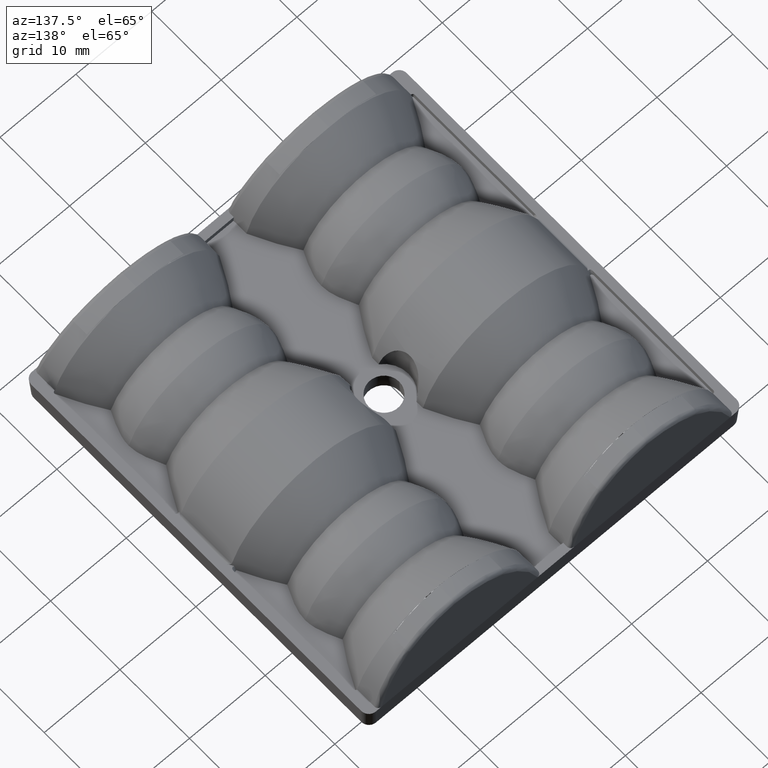
[diagram: clean part render]
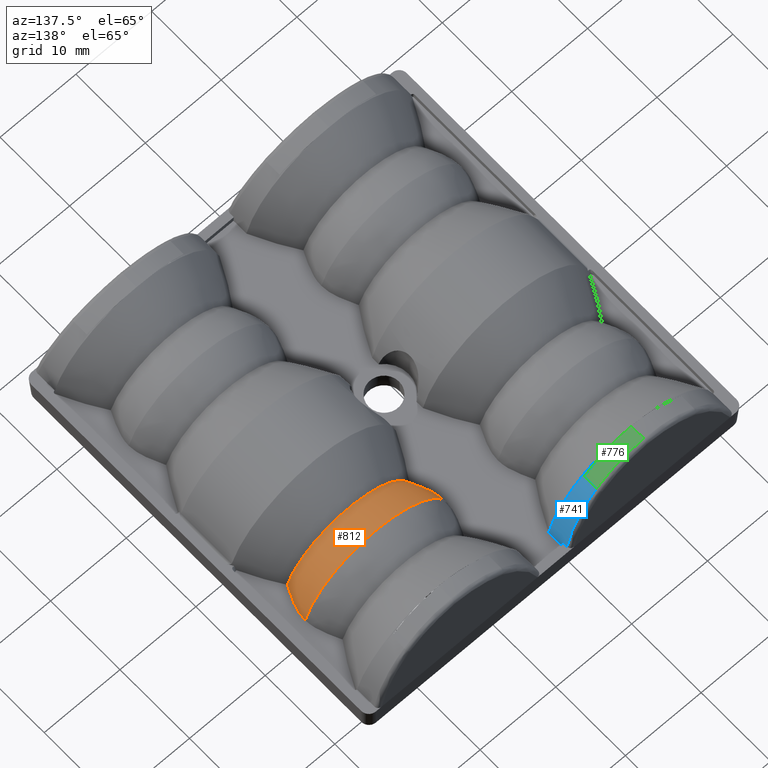
[diagram: same view with three faces highlighted in distinct colors, each labeled with its STEP entity id]
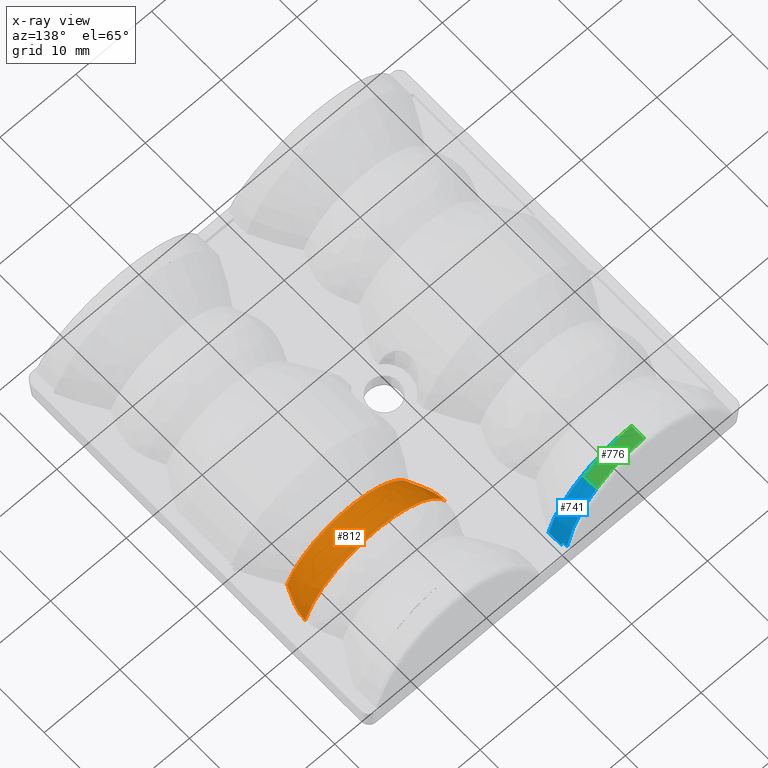
[diagram: x-ray of the same camera — body ghosted, the three highlighted faces saturated]
A machine part, auxiliary view with three faces highlighted in distinct colors.
The next image is the same camera in x-ray (body ghosted, the three faces saturated) — at least one of them is partly hidden behind the body in this view.
Their STEP definitions:

[orange] entity #812 — the highlighted face is a freeform B-spline surface patch.
#57=B_SPLINE_SURFACE_WITH_KNOTS('',3,3,((#10687,#10688,#10689,#10690,#10691,
#10692,#10693,#10694,#10695,#10696,#10697,#10698,#10699,#10700,#10701,#10702,
#10703,#10704,#10705),(#10706,#10707,#10708,#10709,#10710,#10711,#10712,
#10713,#10714,#10715,#10716,#10717,#10718,#10719,#10720,#10721,#10722,#10723,
#10724),(#10725,#10726,#10727,#10728,#10729,#10730,#10731,#10732,#10733,
#10734,#10735,#10736,#10737,#10738,#10739,#10740,#10741,#10742,#10743),
(#10744,#10745,#10746,#10747,#10748,#10749,#10750,#10751,#10752,#10753,
#10754,#10755,#10756,#10757,#10758,#10759,#10760,#10761,#10762),(#10763,
#10764,#10765,#10766,#10767,#10768,#10769,#10770,#10771,#10772,#10773,#10774,
#10775,#10776,#10777,#10778,#10779,#10780,#10781),(#10782,#10783,#10784,
#10785,#10786,#10787,#10788,#10789,#10790,#10791,#10792,#10793,#10794,#10795,
#10796,#10797,#10798,#10799,#10800),(#10801,#10802,#10803,#10804,#10805,
#10806,#10807,#10808,#10809,#10810,#10811,#10812,#10813,#10814,#10815,#10816,
#10817,#10818,#10819)),.UNSPECIFIED.,.F.,.F.,.F.,(4,3,4),(4,3,3,3,3,3,4),
(0.,0.5,1.),(0.,0.25,0.375,0.5,0.625,0.75,1.),.UNSPECIFIED.);
#84=(
BOUNDED_CURVE()
B_SPLINE_CURVE(3,(#10653,#10654,#10655,#10656),.UNSPECIFIED.,.F.,.F.)
B_SPLINE_CURVE_WITH_KNOTS((4,4),(0.,1.),.UNSPECIFIED.)
CURVE()
GEOMETRIC_REPRESENTATION_ITEM()
RATIONAL_B_SPLINE_CURVE((0.931369737568756,0.494506800355459,0.494506800355459,
0.931369737568756))
REPRESENTATION_ITEM('')
);
#495=B_SPLINE_CURVE_WITH_KNOTS('',3,(#7775,#7776,#7777,#7778),
 .UNSPECIFIED.,.F.,.F.,(4,4),(0.,1.),.UNSPECIFIED.);
#572=B_SPLINE_CURVE_WITH_KNOTS('',3,(#8804,#8805,#8806,#8807),
 .UNSPECIFIED.,.F.,.F.,(4,4),(0.,1.),.UNSPECIFIED.);
#622=B_SPLINE_CURVE_WITH_KNOTS('',3,(#10677,#10678,#10679,#10680,#10681,
#10682,#10683,#10684,#10685,#10686),.UNSPECIFIED.,.F.,.F.,(4,2,2,2,4),(0.,
0.25,0.5,0.75,1.),.UNSPECIFIED.);
#812=ADVANCED_FACE('',(#1154),#57,.T.);
#1154=FACE_OUTER_BOUND('',#1457,.T.);
#1457=EDGE_LOOP('',(#2500,#2501,#2502,#2503));
#2500=ORIENTED_EDGE('',*,*,#4152,.T.);
#2501=ORIENTED_EDGE('',*,*,#3890,.T.);
#2502=ORIENTED_EDGE('',*,*,#4151,.F.);
#2503=ORIENTED_EDGE('',*,*,#4047,.T.);
#3332=VERTEX_POINT('',#7773);
#3334=VERTEX_POINT('',#7779);
#3439=VERTEX_POINT('',#8803);
#3440=VERTEX_POINT('',#8808);
#3890=EDGE_CURVE('',#3334,#3332,#495,.T.);
#4047=EDGE_CURVE('',#3440,#3439,#572,.T.);
#4151=EDGE_CURVE('',#3440,#3332,#84,.T.);
#4152=EDGE_CURVE('',#3439,#3334,#622,.T.);
#7773=CARTESIAN_POINT('',(17.3450225792154,-3.98589141570628,1.11099999998252));
#7775=CARTESIAN_POINT('',(16.0681872637782,-2.82331047101202E-15,1.11099999998252));
#7776=CARTESIAN_POINT('',(16.0681872637782,-1.41035374141852,1.11099999998252));
#7777=CARTESIAN_POINT('',(16.7617187634229,-2.70396295532967,1.11099999998252));
#7778=CARTESIAN_POINT('',(17.3450225792154,-3.98589141570628,1.11099999998252));
#7779=CARTESIAN_POINT('',(16.0681872637782,-2.82331047101202E-15,1.11099999998252));
#8803=CARTESIAN_POINT('',(34.7318127362219,-2.823310471012E-15,1.11099999998247));
#8804=CARTESIAN_POINT('',(33.4549774207847,-3.98589141570635,1.11099999998247));
#8805=CARTESIAN_POINT('',(34.0389480230406,-2.70249755681645,1.11099999998247));
#8806=CARTESIAN_POINT('',(34.7318127362219,-1.41826043303065,1.11099999998247));
#8807=CARTESIAN_POINT('',(34.7318127362219,-2.823310471012E-15,1.11099999998247));
#8808=CARTESIAN_POINT('',(33.4549774207847,-3.98589141570633,1.11099999998248));
#10653=CARTESIAN_POINT('',(33.4549774207847,-3.9858914157063,1.11099999998247));
#10654=CARTESIAN_POINT('',(30.4569996887982,-3.9858914157063,10.770457175649));
#10655=CARTESIAN_POINT('',(20.3430003112018,-3.9858914157063,10.770457175649));
#10656=CARTESIAN_POINT('',(17.3450225792154,-3.9858914157063,1.11099999998253));
#10677=CARTESIAN_POINT('',(34.7318127362219,-2.823310471012E-15,1.11099999998248));
#10678=CARTESIAN_POINT('',(34.3293387721207,-2.99777019140623E-15,2.61332466566135));
#10679=CARTESIAN_POINT('',(33.4633288946982,-3.19963854056438E-15,4.35167320522612));
#10680=CARTESIAN_POINT('',(30.2608894454674,-3.53427381177077E-15,7.23331729363509));
#10681=CARTESIAN_POINT('',(27.8711351918026,-3.65487923503217E-15,8.27188655060057));
#10682=CARTESIAN_POINT('',(22.9288648081975,-3.65487923503218E-15,8.27188655060058));
#10683=CARTESIAN_POINT('',(20.5391105545327,-3.53427381177078E-15,7.2333172936351));
#10684=CARTESIAN_POINT('',(17.3366711053019,-3.1996385405644E-15,4.35167320522615));
#10685=CARTESIAN_POINT('',(16.4706612278794,-2.99777019140624E-15,2.61332466566139));
#10686=CARTESIAN_POINT('',(16.0681872637782,-2.82331047101202E-15,1.11099999998252));
#10687=CARTESIAN_POINT('',(33.5486550254734,-3.98589141570631,0.786335037437432));
#10688=CARTESIAN_POINT('',(33.1983661797028,-3.98589141570631,2.09849289556449));
#10689=CARTESIAN_POINT('',(32.4433456042953,-3.98589141570632,3.61749359068749));
#10690=CARTESIAN_POINT('',(31.0452907040907,-3.98589141570632,4.87704772687205));
#10691=CARTESIAN_POINT('',(30.3462632539884,-3.98589141570633,5.50682479496433));
#10692=CARTESIAN_POINT('',(29.4909572844062,-3.98589141570633,6.05955261405738));
#10693=CARTESIAN_POINT('',(28.5237568220242,-3.98589141570633,6.44520733488293));
#10694=CARTESIAN_POINT('',(27.5565563596422,-3.98589141570634,6.83086205570849));
#10695=CARTESIAN_POINT('',(26.479643327904,-3.98589141570634,7.0450180963201));
#10696=CARTESIAN_POINT('',(25.4000000000001,-3.98589141570634,7.0450180963201));
#10697=CARTESIAN_POINT('',(24.3203566720961,-3.98589141570634,7.0450180963201));
#10698=CARTESIAN_POINT('',(23.2434436403579,-3.98589141570635,6.8308620557085));
#10699=CARTESIAN_POINT('',(22.2762431779759,-3.98589141570635,6.44520733488294));
#10700=CARTESIAN_POINT('',(21.309042715594,-3.98589141570635,6.05955261405739));
#10701=CARTESIAN_POINT('',(20.4537367460117,-3.98589141570635,5.50682479496435));
#10702=CARTESIAN_POINT('',(19.7547092959094,-3.98589141570635,4.87704772687207));
#10703=CARTESIAN_POINT('',(18.3566543957048,-3.98589141570636,3.61749359068752));
#10704=CARTESIAN_POINT('',(17.6016338202974,-3.98589141570636,2.09849289556452));
#10705=CARTESIAN_POINT('',(17.2513449745268,-3.98589141570636,0.786335037437474));
#10706=CARTESIAN_POINT('',(33.809389685602,-3.36489865647761,0.85593980532659));
#10707=CARTESIAN_POINT('',(33.4478925554136,-3.36489865647762,2.21008312388908));
#10708=CARTESIAN_POINT('',(32.6687133878822,-3.36489865647764,3.77768768415793));
#10709=CARTESIAN_POINT('',(31.2259245569728,-3.36489865647766,5.07754410563805));
#10710=CARTESIAN_POINT('',(30.5045301415182,-3.36489865647767,5.72747231637811));
#10711=CARTESIAN_POINT('',(29.6218567216527,-3.36489865647768,6.29788591301412));
#10712=CARTESIAN_POINT('',(28.6237084914431,-3.36489865647769,6.6958805294724));
#10713=CARTESIAN_POINT('',(27.6255602612336,-3.36489865647769,7.09387514593069));
#10714=CARTESIAN_POINT('',(26.5141889597022,-3.3648986564777,7.31488359375414));
#10715=CARTESIAN_POINT('',(25.4,-3.36489865647771,7.31488359375414));
#10716=CARTESIAN_POINT('',(24.2858110402978,-3.36489865647772,7.31488359375414));
#10717=CARTESIAN_POINT('',(23.1744397387665,-3.36489865647772,7.09387514593069));
#10718=CARTESIAN_POINT('',(22.176291508557,-3.36489865647773,6.6958805294724));
#10719=CARTESIAN_POINT('',(21.1781432783474,-3.36489865647774,6.29788591301412));
#10720=CARTESIAN_POINT('',(20.2954698584819,-3.36489865647774,5.72747231637811));
#10721=CARTESIAN_POINT('',(19.5740754430273,-3.36489865647775,5.07754410563805));
#10722=CARTESIAN_POINT('',(18.1312866121179,-3.36489865647777,3.77768768415793));
#10723=CARTESIAN_POINT('',(17.3521074445866,-3.36489865647778,2.21008312388909));
#10724=CARTESIAN_POINT('',(16.9906103143981,-3.36489865647778,0.855939805326623));
#10725=CARTESIAN_POINT('',(34.0883263074686,-2.75320763414186,0.930403702114326));
#10726=CARTESIAN_POINT('',(33.714838439298,-2.75320763414186,2.32946349820071));
#10727=CARTESIAN_POINT('',(32.9098141613668,-2.75320763414186,3.9490649734434));
#10728=CARTESIAN_POINT('',(31.419168511163,-2.75320763414186,5.29203719436615));
#10729=CARTESIAN_POINT('',(30.6738456860611,-2.75320763414186,5.96352330482752));
#10730=CARTESIAN_POINT('',(29.7618942863238,-2.75320763414186,6.55285732823182));
#10731=CARTESIAN_POINT('',(28.730637815699,-2.75320763414186,6.96405329199193));
#10732=CARTESIAN_POINT('',(27.6993813450741,-2.75320763414187,7.37524925575204));
#10733=CARTESIAN_POINT('',(26.5511462320085,-2.75320763414187,7.60358847930888));
#10734=CARTESIAN_POINT('',(25.4,-2.75320763414187,7.60358847930889));
#10735=CARTESIAN_POINT('',(24.2488537679916,-2.75320763414187,7.60358847930889));
#10736=CARTESIAN_POINT('',(23.1006186549259,-2.75320763414187,7.37524925575205));
#10737=CARTESIAN_POINT('',(22.0693621843011,-2.75320763414187,6.96405329199195));
#10738=CARTESIAN_POINT('',(21.0381057136762,-2.75320763414187,6.55285732823184));
#10739=CARTESIAN_POINT('',(20.126154313939,-2.75320763414186,5.96352330482755));
#10740=CARTESIAN_POINT('',(19.3808314888371,-2.75320763414186,5.29203719436618));
#10741=CARTESIAN_POINT('',(17.8901858386332,-2.75320763414186,3.94906497344344));
#10742=CARTESIAN_POINT('',(17.085161560702,-2.75320763414186,2.32946349820076));
#10743=CARTESIAN_POINT('',(16.7116736925314,-2.75320763414186,0.930403702114384));
#10744=CARTESIAN_POINT('',(34.3219224872466,-2.09803015642227,0.99276368089588));
#10745=CARTESIAN_POINT('',(33.9383929452127,-2.09803015642227,2.42943889473722));
#10746=CARTESIAN_POINT('',(33.111724614181,-2.09803015642227,4.092585317993));
#10747=CARTESIAN_POINT('',(31.5810011495664,-2.09803015642227,5.47166497425526));
#10748=CARTESIAN_POINT('',(30.8156394172592,-2.09803015642227,6.1612048023864));
#10749=CARTESIAN_POINT('',(29.879169099196,-2.09803015642227,6.76638378506232));
#10750=CARTESIAN_POINT('',(28.8201860488613,-2.09803015642227,7.18863525052383));
#10751=CARTESIAN_POINT('',(27.7612029985266,-2.09803015642227,7.61088671598533));
#10752=CARTESIAN_POINT('',(26.5820961932147,-2.09803015642227,7.84536511622923));
#10753=CARTESIAN_POINT('',(25.4,-2.09803015642227,7.84536511622924));
#10754=CARTESIAN_POINT('',(24.2179038067854,-2.09803015642227,7.84536511622924));
#10755=CARTESIAN_POINT('',(23.0387970014735,-2.09803015642227,7.61088671598534));
#10756=CARTESIAN_POINT('',(21.9798139511388,-2.09803015642227,7.18863525052384));
#10757=CARTESIAN_POINT('',(20.9208309008041,-2.09803015642227,6.76638378506235));
#10758=CARTESIAN_POINT('',(19.9843605827409,-2.09803015642226,6.16120480238642));
#10759=CARTESIAN_POINT('',(19.2189988504336,-2.09803015642226,5.4716649742553));
#10760=CARTESIAN_POINT('',(17.6882753858191,-2.09803015642226,4.09258531799304));
#10761=CARTESIAN_POINT('',(16.8616070547873,-2.09803015642226,2.42943889473727));
#10762=CARTESIAN_POINT('',(16.4780775127534,-2.09803015642225,0.992763680895939));
#10763=CARTESIAN_POINT('',(34.5555186670246,-1.44285267870268,1.05512365967743));
#10764=CARTESIAN_POINT('',(34.1619474511273,-1.44285267870268,2.52941429127372));
#10765=CARTESIAN_POINT('',(33.3136350669951,-1.44285267870267,4.2361056625426));
#10766=CARTESIAN_POINT('',(31.7428337879699,-1.44285267870267,5.65129275414438));
#10767=CARTESIAN_POINT('',(30.9574331484573,-1.44285267870267,6.35888629994527));
#10768=CARTESIAN_POINT('',(29.9964439120682,-1.44285267870267,6.97991024189282));
#10769=CARTESIAN_POINT('',(28.9097342820236,-1.44285267870267,7.41321720905573));
#10770=CARTESIAN_POINT('',(27.8230246519791,-1.44285267870267,7.84652417621863));
#10771=CARTESIAN_POINT('',(26.6130461544209,-1.44285267870267,8.08714175314958));
#10772=CARTESIAN_POINT('',(25.4,-1.44285267870267,8.08714175314959));
#10773=CARTESIAN_POINT('',(24.1869538455791,-1.44285267870267,8.08714175314959));
#10774=CARTESIAN_POINT('',(22.976975348021,-1.44285267870267,7.84652417621864));
#10775=CARTESIAN_POINT('',(21.8902657179765,-1.44285267870267,7.41321720905574));
#10776=CARTESIAN_POINT('',(20.8035560879319,-1.44285267870267,6.97991024189285));
#10777=CARTESIAN_POINT('',(19.8425668515428,-1.44285267870266,6.3588862999453));
#10778=CARTESIAN_POINT('',(19.0571662120302,-1.44285267870266,5.65129275414442));
#10779=CARTESIAN_POINT('',(17.486364933005,-1.44285267870266,4.23610566254264));
#10780=CARTESIAN_POINT('',(16.6380525488727,-1.44285267870265,2.52941429127378));
#10781=CARTESIAN_POINT('',(16.2444813329754,-1.44285267870265,1.05512365967749));
#10782=CARTESIAN_POINT('',(34.7340126665612,-0.747900957517127,1.10277376266419));
#10783=CARTESIAN_POINT('',(34.3327684718865,-0.747900957517125,2.6058068435835));
#10784=CARTESIAN_POINT('',(33.4679175741204,-0.747900957517124,4.34577149842171));
#10785=CARTESIAN_POINT('',(31.8664922951922,-0.747900957517123,5.78854876959271));
#10786=CARTESIAN_POINT('',(31.0657796557281,-0.747900957517122,6.50993740517821));
#10787=CARTESIAN_POINT('',(30.0860551823139,-0.747900957517122,7.14306869475266));
#10788=CARTESIAN_POINT('',(28.9781592978084,-0.747900957517122,7.58482332025244));
#10789=CARTESIAN_POINT('',(27.8702634133029,-0.747900957517122,8.02657794575222));
#10790=CARTESIAN_POINT('',(26.6366954382682,-0.747900957517121,8.27188655060057));
#10791=CARTESIAN_POINT('',(25.4,-0.747900957517121,8.27188655060057));
#10792=CARTESIAN_POINT('',(24.1633045617319,-0.74790095751712,8.27188655060058));
#10793=CARTESIAN_POINT('',(22.9297365866972,-0.747900957517119,8.02657794575223));
#10794=CARTESIAN_POINT('',(21.8218407021917,-0.747900957517117,7.58482332025246));
#10795=CARTESIAN_POINT('',(20.7139448176862,-0.747900957517115,7.14306869475268));
#10796=CARTESIAN_POINT('',(19.734220344272,-0.747900957517113,6.50993740517824));
#10797=CARTESIAN_POINT('',(18.9335077048079,-0.747900957517111,5.78854876959274));
#10798=CARTESIAN_POINT('',(17.3320824258797,-0.747900957517107,4.34577149842176));
#10799=CARTESIAN_POINT('',(16.4672315281136,-0.747900957517103,2.60580684358355));
#10800=CARTESIAN_POINT('',(16.0659873334389,-0.7479009575171,1.10277376266425));
#10801=CARTESIAN_POINT('',(34.7340126665612,-2.82235518678135E-15,1.10277376266419));
#10802=CARTESIAN_POINT('',(34.3327684718865,-2.99689717296511E-15,2.6058068435835));
#10803=CARTESIAN_POINT('',(33.4679175741204,-3.19895319594982E-15,4.34577149842171));
#10804=CARTESIAN_POINT('',(31.8664922951922,-3.366497885237E-15,5.78854876959271));
#10805=CARTESIAN_POINT('',(31.0657796557281,-3.45027022988059E-15,6.50993740517821));
#10806=CARTESIAN_POINT('',(30.0860551823139,-3.52379355694524E-15,7.14306869475266));
#10807=CARTESIAN_POINT('',(28.9781592978084,-3.57509297990501E-15,7.58482332025244));
#10808=CARTESIAN_POINT('',(27.8702634133029,-3.62639240286477E-15,8.02657794575222));
#10809=CARTESIAN_POINT('',(26.6366954382682,-3.65487923503217E-15,8.27188655060057));
#10810=CARTESIAN_POINT('',(25.4,-3.65487923503217E-15,8.27188655060057));
#10811=CARTESIAN_POINT('',(24.1633045617319,-3.65487923503217E-15,8.27188655060058));
#10812=CARTESIAN_POINT('',(22.9297365866972,-3.62639240286477E-15,8.02657794575223));
#10813=CARTESIAN_POINT('',(21.8218407021917,-3.57509297990501E-15,7.58482332025246));
#10814=CARTESIAN_POINT('',(20.7139448176862,-3.52379355694525E-15,7.14306869475268));
#10815=CARTESIAN_POINT('',(19.734220344272,-3.45027022988061E-15,6.50993740517824));
#10816=CARTESIAN_POINT('',(18.9335077048079,-3.36649788523702E-15,5.78854876959274));
#10817=CARTESIAN_POINT('',(17.3320824258797,-3.19895319594984E-15,4.34577149842176));
#10818=CARTESIAN_POINT('',(16.4672315281136,-2.99689717296513E-15,2.60580684358355));
#10819=CARTESIAN_POINT('',(16.0659873334389,-2.82235518678137E-15,1.10277376266425));

[blue] entity #741 — the highlighted cylindrical surface (partial cylindrical patch) has radius 11.2 mm, axis along (0, -1, -0).
#70=(
BOUNDED_CURVE()
B_SPLINE_CURVE(3,(#8916,#8917,#8918,#8919),.UNSPECIFIED.,.F.,.F.)
B_SPLINE_CURVE_WITH_KNOTS((4,4),(0.,1.),.UNSPECIFIED.)
CURVE()
GEOMETRIC_REPRESENTATION_ITEM()
RATIONAL_B_SPLINE_CURVE((1.,0.982518200122157,0.982518200122157,1.))
REPRESENTATION_ITEM('')
);
#106=ELLIPSE('',#5612,11.3727780531203,11.2);
#579=B_SPLINE_CURVE_WITH_KNOTS('',3,(#8909,#8910,#8911,#8912),
 .UNSPECIFIED.,.F.,.F.,(4,4),(0.,1.),.UNSPECIFIED.);
#741=ADVANCED_FACE('',(#1084),#981,.T.);
#981=CYLINDRICAL_SURFACE('',#5613,11.2);
#1084=FACE_OUTER_BOUND('',#1385,.T.);
#1385=EDGE_LOOP('',(#2190,#2191,#2192,#2193,#2194,#2195,#2196));
#2190=ORIENTED_EDGE('',*,*,#4002,.F.);
#2191=ORIENTED_EDGE('',*,*,#4083,.T.);
#2192=ORIENTED_EDGE('',*,*,#4084,.F.);
#2193=ORIENTED_EDGE('',*,*,#4085,.F.);
#2194=ORIENTED_EDGE('',*,*,#4086,.F.);
#2195=ORIENTED_EDGE('',*,*,#3895,.T.);
#2196=ORIENTED_EDGE('',*,*,#4087,.F.);
#3338=VERTEX_POINT('',#7799);
#3339=VERTEX_POINT('',#7801);
#3423=VERTEX_POINT('',#8547);
#3424=VERTEX_POINT('',#8549);
#3456=VERTEX_POINT('',#8913);
#3457=VERTEX_POINT('',#8915);
#3458=VERTEX_POINT('',#8920);
#3895=EDGE_CURVE('',#3339,#3338,#4742,.T.);
#4002=EDGE_CURVE('',#3423,#3424,#4774,.T.);
#4083=EDGE_CURVE('',#3423,#3456,#579,.T.);
#4084=EDGE_CURVE('',#3457,#3456,#4795,.T.);
#4085=EDGE_CURVE('',#3458,#3457,#70,.T.);
#4086=EDGE_CURVE('',#3339,#3458,#4533,.T.);
#4087=EDGE_CURVE('',#3424,#3338,#106,.T.);
#4533=CIRCLE('',#5611,11.2);
#4742=LINE('',#7800,#5160);
#4774=LINE('',#8548,#5192);
#4795=LINE('',#8914,#5213);
#5160=VECTOR('',#6118,1.);
#5192=VECTOR('',#6204,1.);
#5213=VECTOR('',#6333,1.);
#5611=AXIS2_PLACEMENT_3D('',#8921,#6334,#6335);
#5612=AXIS2_PLACEMENT_3D('',#8922,#6336,#6337);
#5613=AXIS2_PLACEMENT_3D('',#8923,#6338,#6339);
#6118=DIRECTION('',(0.,1.,1.22464679914735E-16));
#6204=DIRECTION('',(0.,-1.,-1.22464679914735E-16));
#6333=DIRECTION('',(-8.59255471247758E-15,1.,1.22291559360907E-14));
#6334=DIRECTION('',(0.,-1.,-1.22464679914735E-16));
#6335=DIRECTION('',(0.,1.54886024640786E-16,-1.));
#6336=DIRECTION('',(1.24245027525398E-14,0.984807753012208,-0.17364817766693));
#6337=DIRECTION('',(7.04628565782693E-14,-0.17364817766693,-0.984807753012208));
#6338=DIRECTION('',(0.,-1.,-1.22464679914735E-16));
#6339=DIRECTION('',(0.,1.1616451848059E-16,-1.));
#7799=CARTESIAN_POINT('',(10.9174172769937,10.9072085260804,1.11099999998256));
#7800=CARTESIAN_POINT('',(10.9174172769937,-3.5,1.11099999998256));
#7801=CARTESIAN_POINT('',(10.9174172769937,9.05,1.11099999998255));
#8547=CARTESIAN_POINT('',(10.790736768173,11.5473413223728,1.6109999999826));
#8548=CARTESIAN_POINT('',(10.790736768173,-3.5,1.6109999999826));
#8549=CARTESIAN_POINT('',(10.790736768173,10.9953720164346,1.6109999999826));
#8909=CARTESIAN_POINT('',(10.790736768173,11.5473413223727,1.61099999998255));
#8910=CARTESIAN_POINT('',(9.98446353672172,11.3049429930061,4.51109406792087));
#8911=CARTESIAN_POINT('',(8.16374175733082,11.1322049828352,6.57776045094802));
#8912=CARTESIAN_POINT('',(6.38748899465481,11.0291272918599,7.81099914906755));
#8913=CARTESIAN_POINT('',(6.38748642943031,11.0291926797994,7.81100091964995));
#8914=CARTESIAN_POINT('',(6.38748776906852,8.24433846292724,7.8109999999826));
#8915=CARTESIAN_POINT('',(6.38748776906851,9.25,7.8109999999826));
#8916=CARTESIAN_POINT('',(1.6499919073769,9.05,9.68879430686476));
#8917=CARTESIAN_POINT('',(3.36004348897883,9.07712812047524,9.43408915594069));
#8918=CARTESIAN_POINT('',(4.96730662877023,9.14498097720438,8.7970206155823));
#8919=CARTESIAN_POINT('',(6.38748776906851,9.25,7.8109999999826));
#8920=CARTESIAN_POINT('',(1.64999190737687,9.05,9.68879430686476));
#8921=CARTESIAN_POINT('',(0.,9.05,-1.3890000000174));
#8922=CARTESIAN_POINT('',(0.,10.4663910743093,-1.3890000000174));
#8923=CARTESIAN_POINT('',(0.,-3.5,-1.3890000000174));

[green] entity #776 — the highlighted face is a freeform B-spline surface patch.
#74=(
BOUNDED_CURVE()
B_SPLINE_CURVE(3,(#9248,#9249,#9250,#9251),.UNSPECIFIED.,.F.,.F.)
B_SPLINE_CURVE_WITH_KNOTS((4,4),(0.,1.),.UNSPECIFIED.)
CURVE()
GEOMETRIC_REPRESENTATION_ITEM()
RATIONAL_B_SPLINE_CURVE((1.,0.969542343613685,0.969542343613685,1.))
REPRESENTATION_ITEM('')
);
#407=(
BOUNDED_SURFACE()
B_SPLINE_SURFACE(3,1,((#9252,#9253),(#9254,#9255),(#9256,#9257),(#9258,
#9259)),.UNSPECIFIED.,.F.,.F.,.F.)
B_SPLINE_SURFACE_WITH_KNOTS((4,4),(2,2),(0.,1.),(0.,1.),.UNSPECIFIED.)
GEOMETRIC_REPRESENTATION_ITEM()
RATIONAL_B_SPLINE_SURFACE(((1.,1.),(0.969542343613685,0.969542343613685),
(0.969542343613685,0.969542343613685),(1.,1.)))
REPRESENTATION_ITEM('')
SURFACE()
);
#595=B_SPLINE_CURVE_WITH_KNOTS('',3,(#9244,#9245,#9246,#9247),
 .UNSPECIFIED.,.F.,.F.,(4,4),(0.,1.),.UNSPECIFIED.);
#776=ADVANCED_FACE('',(#1118),#407,.T.);
#1118=FACE_OUTER_BOUND('',#1421,.T.);
#1421=EDGE_LOOP('',(#2318,#2319,#2320,#2321));
#2318=ORIENTED_EDGE('',*,*,#4113,.T.);
#2319=ORIENTED_EDGE('',*,*,#4111,.F.);
#2320=ORIENTED_EDGE('',*,*,#4114,.F.);
#2321=ORIENTED_EDGE('',*,*,#4084,.T.);
#3456=VERTEX_POINT('',#8913);
#3457=VERTEX_POINT('',#8915);
#3470=VERTEX_POINT('',#9229);
#3471=VERTEX_POINT('',#9231);
#4084=EDGE_CURVE('',#3457,#3456,#4795,.T.);
#4111=EDGE_CURVE('',#3470,#3471,#4802,.T.);
#4113=EDGE_CURVE('',#3456,#3471,#595,.T.);
#4114=EDGE_CURVE('',#3457,#3470,#74,.T.);
#4795=LINE('',#8914,#5213);
#4802=LINE('',#9230,#5220);
#5213=VECTOR('',#6333,1.);
#5220=VECTOR('',#6392,1.);
#6333=DIRECTION('',(-8.59255471247758E-15,1.,1.22291559360907E-14));
#6392=DIRECTION('',(-8.59255471247758E-15,1.,1.22291559360907E-14));
#8913=CARTESIAN_POINT('',(6.38748642943031,11.0291926797994,7.81100091964995));
#8914=CARTESIAN_POINT('',(6.38748776906852,8.24433846292724,7.8109999999826));
#8915=CARTESIAN_POINT('',(6.38748776906851,9.25,7.8109999999826));
#9229=CARTESIAN_POINT('',(1.83351296798987E-15,9.03937345862652,9.78856660132956));
#9230=CARTESIAN_POINT('',(1.07310240024516E-14,8.03371192155376,9.78856660132954));
#9231=CARTESIAN_POINT('',(-1.38440378103528E-14,10.8639240495674,9.78856660132958));
#9244=CARTESIAN_POINT('',(6.38748354685788,11.0292580478343,7.81100289854769));
#9245=CARTESIAN_POINT('',(4.55480037405899,10.9103531379516,9.06914687919917));
#9246=CARTESIAN_POINT('',(2.23109169073035,10.8488266381053,9.78856660132957));
#9247=CARTESIAN_POINT('',(-1.3844037810353E-14,10.8639240495674,9.78856660132958));
#9248=CARTESIAN_POINT('',(6.38748776906851,9.25,7.8109999999826));
#9249=CARTESIAN_POINT('',(4.49723111373227,9.11178787929309,9.10866966701029));
#9250=CARTESIAN_POINT('',(2.30118201519195,9.03937345862652,9.78856660132955));
#9251=CARTESIAN_POINT('',(1.83351296798987E-15,9.03937345862652,9.78856660132956));
#9252=CARTESIAN_POINT('',(1.04747147475219E-14,8.03371192155376,9.78856660132954));
#9253=CARTESIAN_POINT('',(-2.42197547720143E-14,12.0714481572224,9.7885666013296));
#9254=CARTESIAN_POINT('',(2.30118201519196,8.03371192155377,9.78856660132953));
#9255=CARTESIAN_POINT('',(2.30118201519192,12.0714481572224,9.78856660132959));
#9256=CARTESIAN_POINT('',(4.49723111373228,8.10612634222033,9.10866966701029));
#9257=CARTESIAN_POINT('',(4.49723111373225,12.143862577889,9.10866966701033));
#9258=CARTESIAN_POINT('',(6.38748776906852,8.24433846292724,7.8109999999826));
#9259=CARTESIAN_POINT('',(6.38748776906849,12.2820746985959,7.8109999999826));